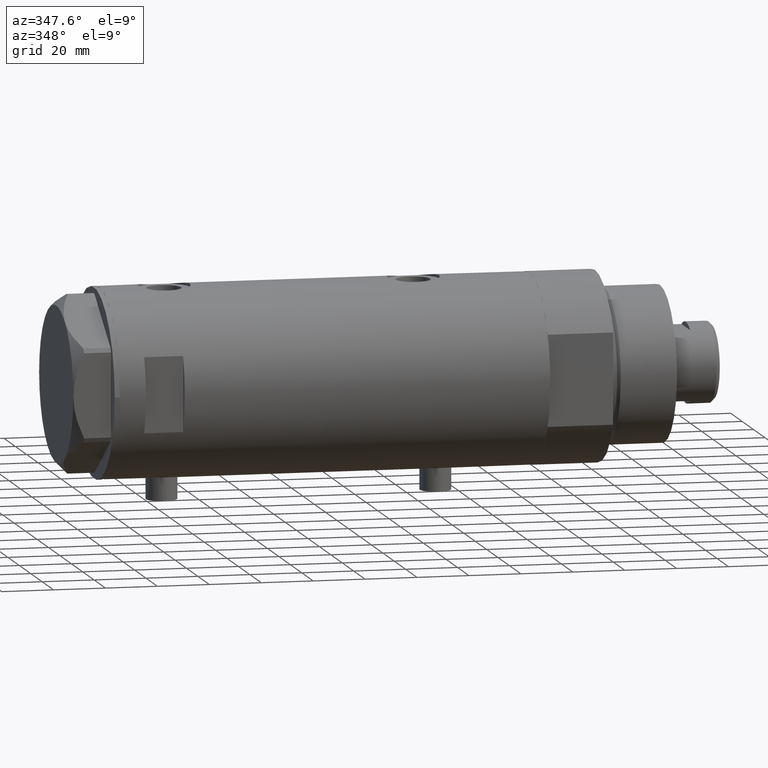
[diagram: clean part render]
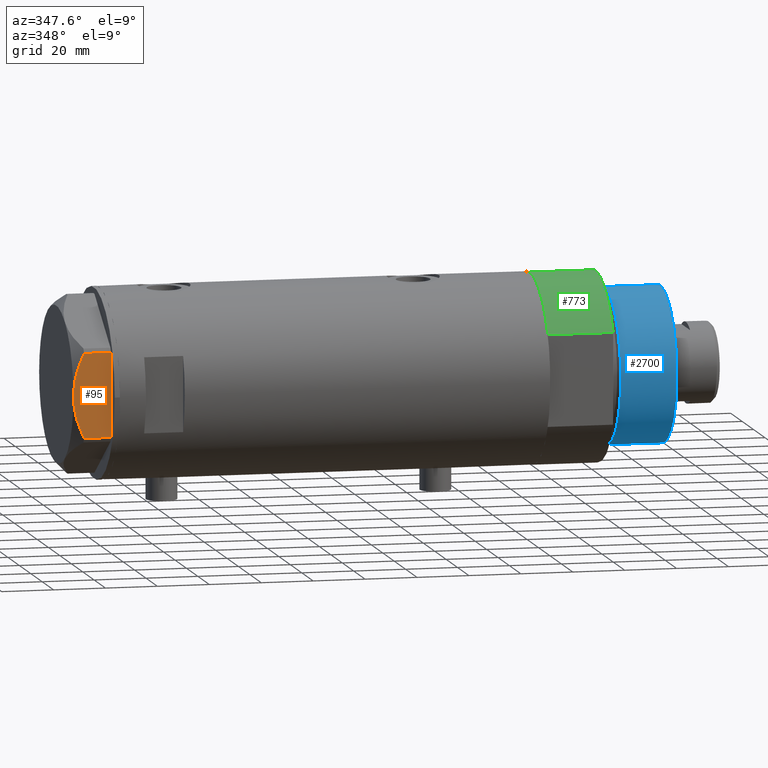
[diagram: same view with three faces highlighted in distinct colors, each labeled with its STEP entity id]
A machine part, auxiliary view with three faces highlighted in distinct colors.
Their STEP definitions:

[orange] entity #95 — the highlighted planar face has unit normal (-0, 1, 0).
#95 = ADVANCED_FACE ( 'NONE', ( #3765 ), #2333, .F. ) ;
#257 = ORIENTED_EDGE ( 'NONE', *, *, #3614, .T. ) ;
#276 = VERTEX_POINT ( 'NONE', #1689 ) ;
#293 = CARTESIAN_POINT ( 'NONE',  ( -29.99999999999999289, -15.56759648729806322, 10.70591879357992227 ) ) ;
#406 = VECTOR ( 'NONE', #3023, 1000.000000000000000 ) ;
#434 = B_SPLINE_CURVE_WITH_KNOTS ( 'NONE', 3,
 ( #3974, #3345, #859, #1617, #2243, #1888, #877, #2946, #4324, #3011, #2606, #2383, #293, #4056 ),
 .UNSPECIFIED., .F., .F.,
 ( 4, 2, 2, 2, 2, 2, 4 ),
 ( 0.06183748343640969869, 0.06393495742991751885, 0.06603243142342535288, 0.07022737941044099319, 0.07442232739745664738, 0.07651980139096448141, 0.07861727538447230157 ),
 .UNSPECIFIED. ) ;
#667 = CARTESIAN_POINT ( 'NONE',  ( -30.00000000000000711, 8.981118657900116986, 13.19130745470829247 ) ) ;
#702 = DIRECTION ( 'NONE',  ( 0.000000000000000000, -1.000000000000000000, 0.000000000000000000 ) ) ;
#859 = CARTESIAN_POINT ( 'NONE',  ( -30.00000000000000355, -1.418661615092686290, 14.47469700449902952 ) ) ;
#867 = VERTEX_POINT ( 'NONE', #3772 ) ;
#877 = CARTESIAN_POINT ( 'NONE',  ( -30.00000000000000000, -6.973771051792319042, 13.72753822183687511 ) ) ;
#1002 = CARTESIAN_POINT ( 'NONE',  ( -30.00000000000000355, 10.99748736931232607, 12.55407623651775495 ) ) ;
#1296 = CARTESIAN_POINT ( 'NONE',  ( -30.00000000000000000, 0.000000000000000000, 14.50000000000000000 ) ) ;
#1343 = CARTESIAN_POINT ( 'NONE',  ( -30.00000000000000000, 16.20050807568875584, 10.40518423703603546 ) ) ;
#1405 = B_SPLINE_CURVE_WITH_KNOTS ( 'NONE', 3,
 ( #1343, #3768, #2729, #4111, #1002, #2392, #667, #1586, #2976, #3514 ),
 .UNSPECIFIED., .F., .F.,
 ( 4, 2, 2, 2, 4 ),
 ( 0.04501738275285960267, 0.04922240792374713014, 0.05132492050919089388, 0.05342743309463465068, 0.06183748343640969869 ),
 .UNSPECIFIED. ) ;
#1539 = AXIS2_PLACEMENT_3D ( 'NONE', #4421, #3713, #1988 ) ;
#1586 = CARTESIAN_POINT ( 'NONE',  ( -30.00000000000000000, 5.593935073701701732, 14.09487059093540573 ) ) ;
#1617 = CARTESIAN_POINT ( 'NONE',  ( -29.99999999999999645, -2.827567415490778835, 14.37523681947611109 ) ) ;
#1618 = EDGE_LOOP ( 'NONE', ( #2253, #1929, #257, #3115, #2927 ) ) ;
#1689 = CARTESIAN_POINT ( 'NONE',  ( -30.00000000000000000, 16.20050807568875584, 10.40518423703603546 ) ) ;
#1888 = CARTESIAN_POINT ( 'NONE',  ( -29.99999999999999289, -5.607365453019637513, 14.01139032121647965 ) ) ;
#1929 = ORIENTED_EDGE ( 'NONE', *, *, #3117, .T. ) ;
#1988 = DIRECTION ( 'NONE',  ( -0.000000000000000000, 0.000000000000000000, -1.000000000000000000 ) ) ;
#2042 = VERTEX_POINT ( 'NONE', #1296 ) ;
#2243 = CARTESIAN_POINT ( 'NONE',  ( -30.00000000000000000, -3.526431665117130798, 14.30125973663612626 ) ) ;
#2253 = ORIENTED_EDGE ( 'NONE', *, *, #3206, .F. ) ;
#2333 = PLANE ( 'NONE',  #1539 ) ;
#2383 = CARTESIAN_POINT ( 'NONE',  ( -29.99999999999999289, -14.92797448277034533, 10.99622797424084553 ) ) ;
#2391 = VERTEX_POINT ( 'NONE', #4435 ) ;
#2392 = CARTESIAN_POINT ( 'NONE',  ( -30.00000000000000000, 9.655259153795977767, 12.99093232113973606 ) ) ;
#2559 = DIRECTION ( 'NONE',  ( 0.000000000000000000, 0.000000000000000000, 1.000000000000000000 ) ) ;
#2606 = CARTESIAN_POINT ( 'NONE',  ( -29.99999999999999289, -13.63320717147166405, 11.55272916346384804 ) ) ;
#2632 = CARTESIAN_POINT ( 'NONE',  ( -30.00000000000000000, 16.20050807568875584, 14.50000000000000000 ) ) ;
#2692 = CARTESIAN_POINT ( 'NONE',  ( -30.00000000000000000, 17.32050807568877460, 0.000000000000000000 ) ) ;
#2716 = LINE ( 'NONE', #2692, #3229 ) ;
#2729 = CARTESIAN_POINT ( 'NONE',  ( -30.00000000000000355, 13.64854889245356695, 11.56384586935411996 ) ) ;
#2927 = ORIENTED_EDGE ( 'NONE', *, *, #3502, .F. ) ;
#2942 = LINE ( 'NONE', #4319, #3163 ) ;
#2946 = CARTESIAN_POINT ( 'NONE',  ( -29.99999999999999645, -9.671229349009038856, 13.00645148086949554 ) ) ;
#2976 = CARTESIAN_POINT ( 'NONE',  ( -30.00000000000000711, 2.830925467268496476, 14.50000000000000533 ) ) ;
#3011 = CARTESIAN_POINT ( 'NONE',  ( -29.99999999999999645, -12.97715359595204809, 11.81918444541430624 ) ) ;
#3023 = DIRECTION ( 'NONE',  ( 0.000000000000000000, 0.000000000000000000, -1.000000000000000000 ) ) ;
#3115 = ORIENTED_EDGE ( 'NONE', *, *, #3904, .T. ) ;
#3117 = EDGE_CURVE ( 'NONE', #276, #2391, #4024, .T. ) ;
#3163 = VECTOR ( 'NONE', #2559, 1000.000000000000000 ) ;
#3206 = EDGE_CURVE ( 'NONE', #276, #2042, #1405, .T. ) ;
#3229 = VECTOR ( 'NONE', #702, 1000.000000000000000 ) ;
#3345 = CARTESIAN_POINT ( 'NONE',  ( -30.00000000000000000, -0.7060353153488233557, 14.49999999999999822 ) ) ;
#3502 = EDGE_CURVE ( 'NONE', #2042, #867, #434, .T. ) ;
#3514 = CARTESIAN_POINT ( 'NONE',  ( -30.00000000000000000, 0.000000000000000000, 14.50000000000000000 ) ) ;
#3566 = VERTEX_POINT ( 'NONE', #3759 ) ;
#3614 = EDGE_CURVE ( 'NONE', #2391, #3566, #2716, .T. ) ;
#3713 = DIRECTION ( 'NONE',  ( 1.000000000000000000, 0.000000000000000000, -0.000000000000000000 ) ) ;
#3759 = CARTESIAN_POINT ( 'NONE',  ( -30.00000000000000000, -16.20050807568876294, 0.000000000000000000 ) ) ;
#3765 = FACE_OUTER_BOUND ( 'NONE', #1618, .T. ) ;
#3768 = CARTESIAN_POINT ( 'NONE',  ( -30.00000000000001421, 14.93680064777130312, 11.00564802993687508 ) ) ;
#3772 = CARTESIAN_POINT ( 'NONE',  ( -30.00000000000000000, -16.20050807568876294, 10.40518423703603901 ) ) ;
#3904 = EDGE_CURVE ( 'NONE', #3566, #867, #2942, .T. ) ;
#3974 = CARTESIAN_POINT ( 'NONE',  ( -30.00000000000000000, 0.000000000000000000, 14.50000000000000000 ) ) ;
#4024 = LINE ( 'NONE', #2632, #406 ) ;
#4056 = CARTESIAN_POINT ( 'NONE',  ( -30.00000000000000000, -16.20050807568876294, 10.40518423703603901 ) ) ;
#4111 = CARTESIAN_POINT ( 'NONE',  ( -30.00000000000000000, 11.66725319103952607, 12.31690447555093293 ) ) ;
#4319 = CARTESIAN_POINT ( 'NONE',  ( -30.00000000000000000, -16.20050807568876294, 14.50000000000000000 ) ) ;
#4324 = CARTESIAN_POINT ( 'NONE',  ( -30.00000000000000000, -11.00230860792644982, 12.56933207488871673 ) ) ;
#4421 = CARTESIAN_POINT ( 'NONE',  ( -30.00000000000000000, 17.32050807568877460, 14.50000000000000000 ) ) ;
#4435 = CARTESIAN_POINT ( 'NONE',  ( -30.00000000000000000, 16.20050807568875584, 0.000000000000000000 ) ) ;

[blue] entity #2700 — the highlighted cylindrical surface (partial cylindrical patch) has radius 30 mm, axis along (-1, -0, 0).
#13 = DIRECTION ( 'NONE',  ( 0.000000000000000000, 0.000000000000000000, 1.000000000000000000 ) ) ;
#69 = CARTESIAN_POINT ( 'NONE',  ( 0.000000000000000000, 0.000000000000000000, 28.57384048104054486 ) ) ;
#89 = DIRECTION ( 'NONE',  ( -0.000000000000000000, -0.000000000000000000, 1.000000000000000000 ) ) ;
#165 = ORIENTED_EDGE ( 'NONE', *, *, #3637, .F. ) ;
#354 = EDGE_CURVE ( 'NONE', #1189, #2108, #4229, .T. ) ;
#358 = DIRECTION ( 'NONE',  ( 1.000000000000000000, 0.000000000000000000, 0.000000000000000000 ) ) ;
#558 = EDGE_LOOP ( 'NONE', ( #165, #3828, #3204, #2629 ) ) ;
#1189 = VERTEX_POINT ( 'NONE', #1650 ) ;
#1346 = EDGE_CURVE ( 'NONE', #1679, #1189, #1975, .T. ) ;
#1490 = DIRECTION ( 'NONE',  ( 1.000000000000000000, 0.000000000000000000, 0.000000000000000000 ) ) ;
#1650 = CARTESIAN_POINT ( 'NONE',  ( -30.00000000000000000, 0.000000000000000000, 28.57384048104054486 ) ) ;
#1679 = VERTEX_POINT ( 'NONE', #4447 ) ;
#1690 = CIRCLE ( 'NONE', #4448, 30.00000000000000000 ) ;
#1735 = LINE ( 'NONE', #3418, #2939 ) ;
#1975 = LINE ( 'NONE', #3371, #4462 ) ;
#2108 = VERTEX_POINT ( 'NONE', #3086 ) ;
#2496 = DIRECTION ( 'NONE',  ( -0.000000000000000000, -0.000000000000000000, -1.000000000000000000 ) ) ;
#2629 = ORIENTED_EDGE ( 'NONE', *, *, #354, .T. ) ;
#2700 = ADVANCED_FACE ( 'NONE', ( #3987 ), #4052, .T. ) ;
#2737 = CARTESIAN_POINT ( 'NONE',  ( 0.000000000000000000, 0.000000000000000000, 50.19999999999999574 ) ) ;
#2846 = EDGE_CURVE ( 'NONE', #1679, #4406, #1690, .T. ) ;
#2912 = CARTESIAN_POINT ( 'NONE',  ( 30.00000000000000000, 3.673940397442058389E-15, 50.19999999999999574 ) ) ;
#2939 = VECTOR ( 'NONE', #3775, 1000.000000000000000 ) ;
#3086 = CARTESIAN_POINT ( 'NONE',  ( 30.00000000000000000, 3.673940397442058389E-15, 28.57384048104054486 ) ) ;
#3137 = CARTESIAN_POINT ( 'NONE',  ( 0.000000000000000000, 0.000000000000000000, 50.19999999999999574 ) ) ;
#3204 = ORIENTED_EDGE ( 'NONE', *, *, #1346, .T. ) ;
#3371 = CARTESIAN_POINT ( 'NONE',  ( -30.00000000000000000, 0.000000000000000000, 50.19999999999999574 ) ) ;
#3418 = CARTESIAN_POINT ( 'NONE',  ( 30.00000000000000000, 3.673940397442058389E-15, 50.19999999999999574 ) ) ;
#3433 = DIRECTION ( 'NONE',  ( -0.000000000000000000, -0.000000000000000000, -1.000000000000000000 ) ) ;
#3637 = EDGE_CURVE ( 'NONE', #4406, #2108, #1735, .T. ) ;
#3722 = AXIS2_PLACEMENT_3D ( 'NONE', #2737, #3433, #3725 ) ;
#3725 = DIRECTION ( 'NONE',  ( -1.000000000000000000, 0.000000000000000000, 0.000000000000000000 ) ) ;
#3775 = DIRECTION ( 'NONE',  ( -0.000000000000000000, -0.000000000000000000, -1.000000000000000000 ) ) ;
#3828 = ORIENTED_EDGE ( 'NONE', *, *, #2846, .F. ) ;
#3987 = FACE_OUTER_BOUND ( 'NONE', #558, .T. ) ;
#4052 = CYLINDRICAL_SURFACE ( 'NONE', #3722, 30.00000000000000000 ) ;
#4229 = CIRCLE ( 'NONE', #4370, 30.00000000000000000 ) ;
#4370 = AXIS2_PLACEMENT_3D ( 'NONE', #69, #89, #1490 ) ;
#4406 = VERTEX_POINT ( 'NONE', #2912 ) ;
#4447 = CARTESIAN_POINT ( 'NONE',  ( -30.00000000000000000, 0.000000000000000000, 50.19999999999999574 ) ) ;
#4448 = AXIS2_PLACEMENT_3D ( 'NONE', #3137, #13, #358 ) ;
#4462 = VECTOR ( 'NONE', #2496, 1000.000000000000000 ) ;

[green] entity #773 — the highlighted cylindrical surface (partial cylindrical patch) has radius 36.5 mm, axis along (-1, -0, 0).
#46 = CARTESIAN_POINT ( 'NONE',  ( -36.50000000000000000, 0.000000000000000000, 25.19999999999999929 ) ) ;
#225 = DIRECTION ( 'NONE',  ( 0.000000000000000000, 0.000000000000000000, 1.000000000000000000 ) ) ;
#274 = CARTESIAN_POINT ( 'NONE',  ( 0.000000000000000000, 0.000000000000000000, 25.19999999999999929 ) ) ;
#301 = EDGE_CURVE ( 'NONE', #856, #4094, #3737, .T. ) ;
#610 = FACE_OUTER_BOUND ( 'NONE', #3708, .T. ) ;
#633 = CARTESIAN_POINT ( 'NONE',  ( -36.50000000000000000, 0.000000000000000000, 0.000000000000000000 ) ) ;
#653 = DIRECTION ( 'NONE',  ( -0.000000000000000000, -0.000000000000000000, 1.000000000000000000 ) ) ;
#675 = DIRECTION ( 'NONE',  ( 1.000000000000000000, 0.000000000000000000, 0.000000000000000000 ) ) ;
#729 = VERTEX_POINT ( 'NONE', #3443 ) ;
#773 = ADVANCED_FACE ( 'NONE', ( #610 ), #996, .T. ) ;
#856 = VERTEX_POINT ( 'NONE', #46 ) ;
#996 = CYLINDRICAL_SURFACE ( 'NONE', #3071, 36.50000000000000000 ) ;
#1202 = AXIS2_PLACEMENT_3D ( 'NONE', #274, #4123, #675 ) ;
#1293 = CARTESIAN_POINT ( 'NONE',  ( 0.000000000000000000, 0.000000000000000000, 25.19999999999999929 ) ) ;
#1494 = CARTESIAN_POINT ( 'NONE',  ( -17.55704986607943141, -32.00000000000000000, 0.000000000000000000 ) ) ;
#1700 = CIRCLE ( 'NONE', #2282, 36.50000000000000000 ) ;
#1814 = CARTESIAN_POINT ( 'NONE',  ( -17.55704986607943496, -32.00000000000000000, 25.19999999999999929 ) ) ;
#1893 = EDGE_CURVE ( 'NONE', #4094, #729, #1700, .T. ) ;
#1915 = VECTOR ( 'NONE', #653, 1000.000000000000000 ) ;
#2003 = LINE ( 'NONE', #1494, #1915 ) ;
#2013 = CARTESIAN_POINT ( 'NONE',  ( -36.50000000000000000, 0.000000000000000000, 25.19999999999999929 ) ) ;
#2226 = CARTESIAN_POINT ( 'NONE',  ( 0.000000000000000000, 0.000000000000000000, 0.000000000000000000 ) ) ;
#2282 = AXIS2_PLACEMENT_3D ( 'NONE', #2226, #225, #2989 ) ;
#2831 = VERTEX_POINT ( 'NONE', #1814 ) ;
#2989 = DIRECTION ( 'NONE',  ( 1.000000000000000000, 0.000000000000000000, 0.000000000000000000 ) ) ;
#3043 = ORIENTED_EDGE ( 'NONE', *, *, #4115, .T. ) ;
#3071 = AXIS2_PLACEMENT_3D ( 'NONE', #1293, #3691, #3083 ) ;
#3083 = DIRECTION ( 'NONE',  ( -1.000000000000000000, 0.000000000000000000, 0.000000000000000000 ) ) ;
#3157 = CIRCLE ( 'NONE', #1202, 36.50000000000000000 ) ;
#3400 = DIRECTION ( 'NONE',  ( -0.000000000000000000, -0.000000000000000000, -1.000000000000000000 ) ) ;
#3430 = VECTOR ( 'NONE', #3400, 1000.000000000000000 ) ;
#3443 = CARTESIAN_POINT ( 'NONE',  ( -17.55704986607943496, -32.00000000000000000, 0.000000000000000000 ) ) ;
#3533 = ORIENTED_EDGE ( 'NONE', *, *, #301, .T. ) ;
#3595 = EDGE_CURVE ( 'NONE', #856, #2831, #3157, .T. ) ;
#3691 = DIRECTION ( 'NONE',  ( -0.000000000000000000, -0.000000000000000000, -1.000000000000000000 ) ) ;
#3708 = EDGE_LOOP ( 'NONE', ( #3735, #3533, #3793, #3043 ) ) ;
#3735 = ORIENTED_EDGE ( 'NONE', *, *, #3595, .F. ) ;
#3737 = LINE ( 'NONE', #2013, #3430 ) ;
#3793 = ORIENTED_EDGE ( 'NONE', *, *, #1893, .T. ) ;
#4094 = VERTEX_POINT ( 'NONE', #633 ) ;
#4115 = EDGE_CURVE ( 'NONE', #729, #2831, #2003, .T. ) ;
#4123 = DIRECTION ( 'NONE',  ( 0.000000000000000000, 0.000000000000000000, 1.000000000000000000 ) ) ;